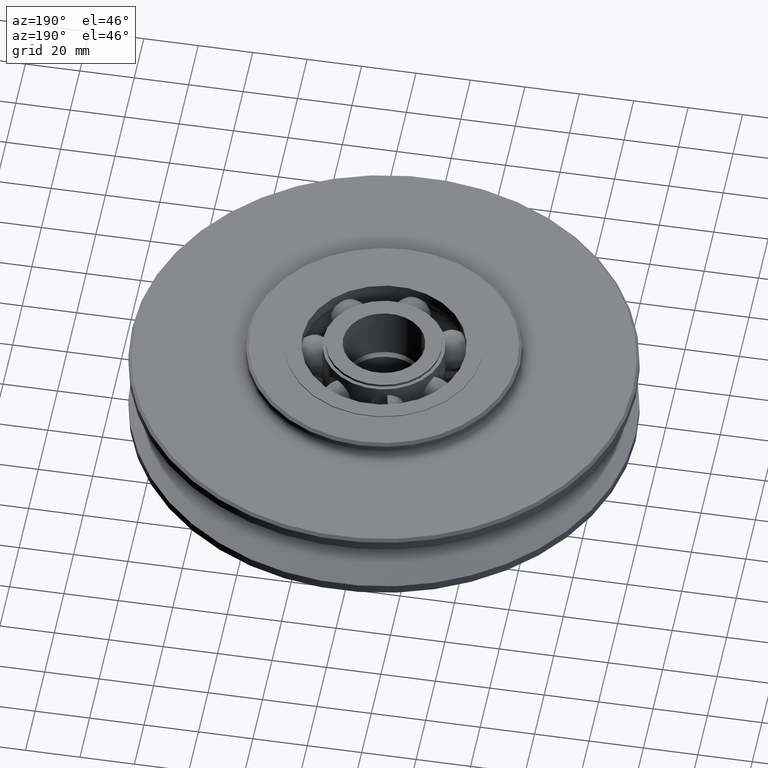
[diagram: clean part render]
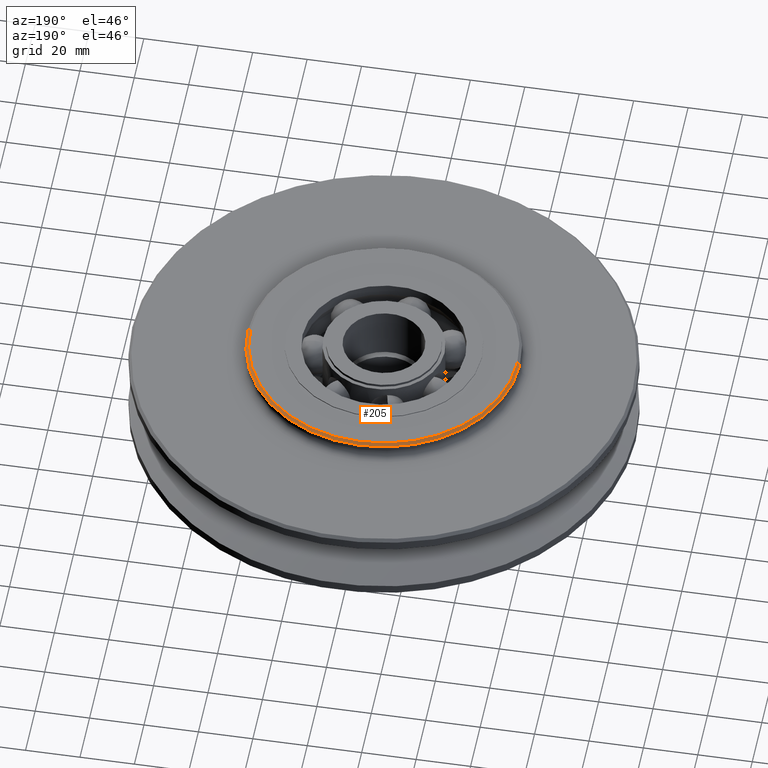
[diagram: same view with one face highlighted and labeled with its STEP entity id]
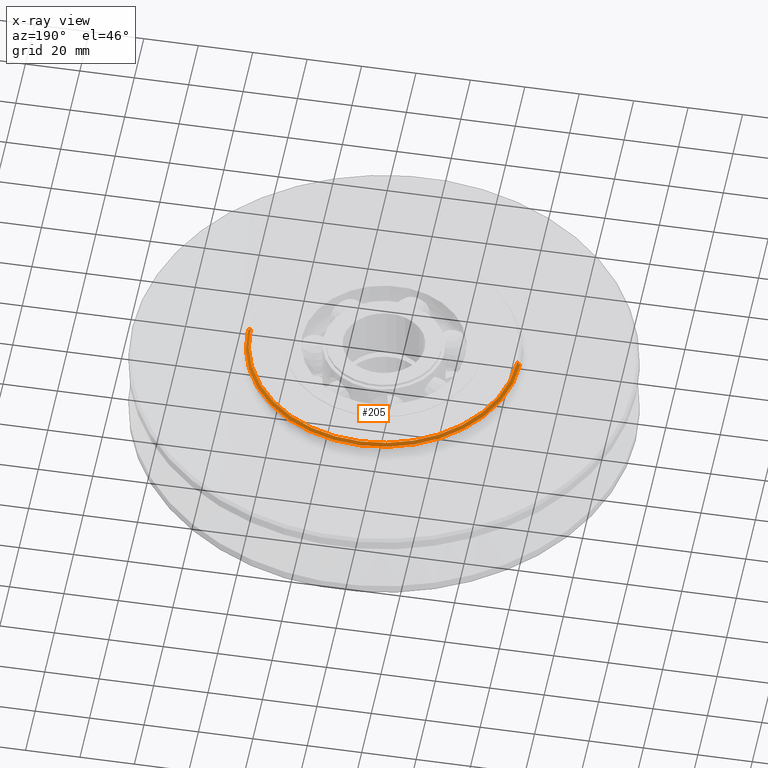
[diagram: x-ray of the same camera — body ghosted, the highlighted face saturated]
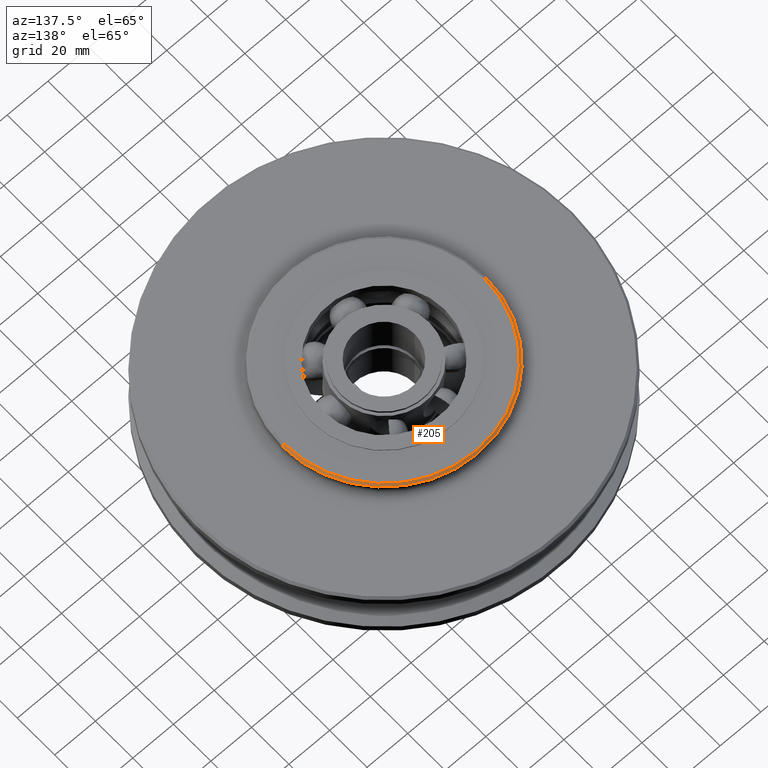
[diagram: same view with one face highlighted and labeled with its STEP entity id]
A machine part, auxiliary view. The second image highlights one B-rep face of the part: STEP entity #205.
The next image is the same camera in x-ray: the body ghosted, the highlighted face saturated — about 0% of this face is hidden behind the body in this view.
A second angle (auxiliary view) of the same face is appended — the face is thin or edge-on in the first view.
In plain terms, the highlighted conical surface has half-angle 45 deg.
Its self-contained STEP definition (entity closure, byte-faithful):
#205=ADVANCED_FACE('',(#505),#506,.T.);
#505=FACE_OUTER_BOUND('',#923,.T.);
#506=CONICAL_SURFACE('',#924,49.5,0.785398163397448);
#923=EDGE_LOOP('',(#1465,#1466,#1467,#1468));
#924=AXIS2_PLACEMENT_3D('',#1469,#1470,#1471);
#1465=ORIENTED_EDGE('',*,*,#2683,.F.);
#1466=ORIENTED_EDGE('',*,*,#2684,.T.);
#1467=ORIENTED_EDGE('',*,*,#2685,.F.);
#1468=ORIENTED_EDGE('',*,*,#2686,.F.);
#1469=CARTESIAN_POINT('',(0.0,0.0,19.5));
#1470=DIRECTION('',(-0.0,-0.0,-1.0));
#1471=DIRECTION('',(1.0,0.0,0.0));
#2683=EDGE_CURVE('',#3290,#3291,#3292,.T.);
#2684=EDGE_CURVE('',#3290,#3293,#3294,.T.);
#2685=EDGE_CURVE('',#3295,#3293,#3296,.T.);
#2686=EDGE_CURVE('',#3291,#3295,#3297,.T.);
#3290=VERTEX_POINT('',#5157);
#3291=VERTEX_POINT('',#5158);
#3292=LINE('',#5159,#5160);
#3293=VERTEX_POINT('',#5161);
#3294=CIRCLE('',#5162,50.0);
#3295=VERTEX_POINT('',#5163);
#3296=LINE('',#5164,#5165);
#3297=CIRCLE('',#5166,49.0);
#5157=CARTESIAN_POINT('',(50.0,0.0,19.0));
#5158=CARTESIAN_POINT('',(49.0,0.0,20.0));
#5159=CARTESIAN_POINT('',(49.5,-6.0620016557794E-015,19.5));
#5160=VECTOR('',#8687,1.0);
#5161=CARTESIAN_POINT('',(-50.0,6.12323399573676E-015,19.0));
#5162=AXIS2_PLACEMENT_3D('',#8688,#8689,#8690);
#5163=CARTESIAN_POINT('',(-49.0,6.00076931582203E-015,20.0));
#5164=CARTESIAN_POINT('',(-49.5,6.0620016557794E-015,19.5));
#5165=VECTOR('',#8691,1.0);
#5166=AXIS2_PLACEMENT_3D('',#8692,#8693,#8694);
#8687=DIRECTION('',(-0.707106781186547,8.65956056235493E-017,0.707106781186548));
#8688=CARTESIAN_POINT('',(0.0,0.0,19.0));
#8689=DIRECTION('',(0.0,0.0,1.0));
#8690=DIRECTION('',(1.0,0.0,0.0));
#8691=DIRECTION('',(-0.707106781186547,8.65956056235493E-017,-0.707106781186548));
#8692=CARTESIAN_POINT('',(0.0,0.0,20.0));
#8693=DIRECTION('',(0.0,0.0,1.0));
#8694=DIRECTION('',(1.0,0.0,0.0));